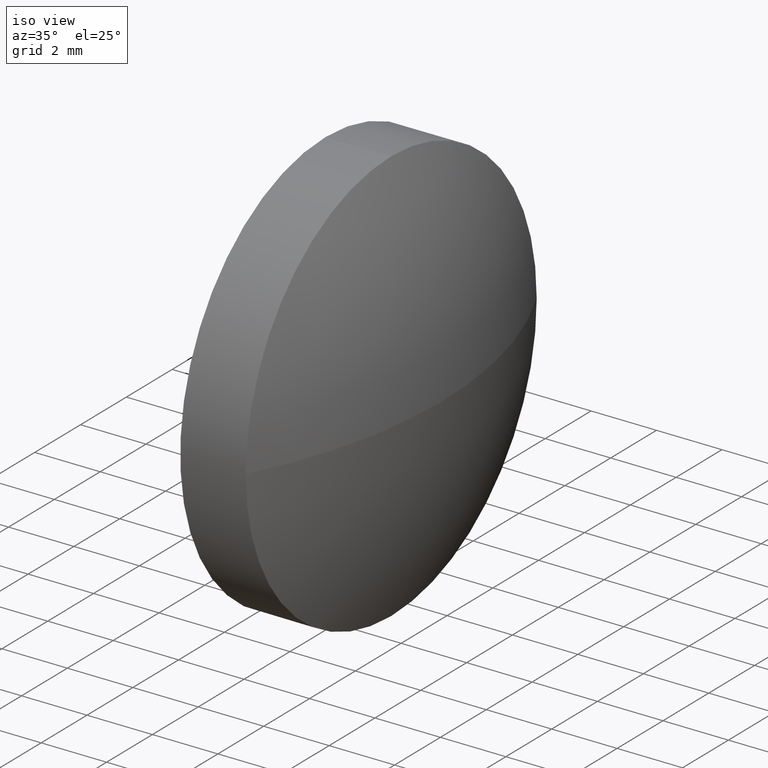
[diagram: clean part render]
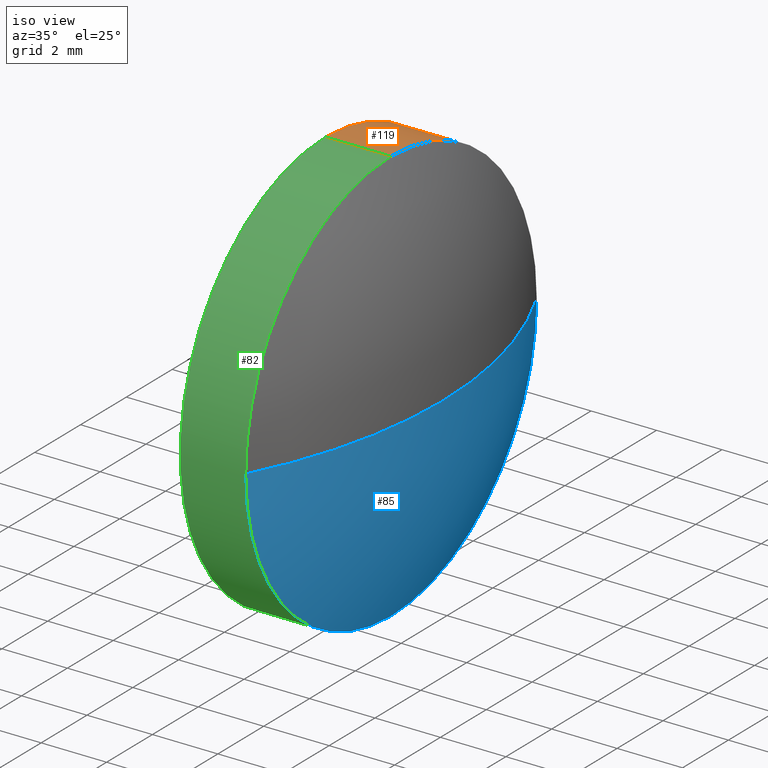
[diagram: same view with three faces highlighted in distinct colors, each labeled with its STEP entity id]
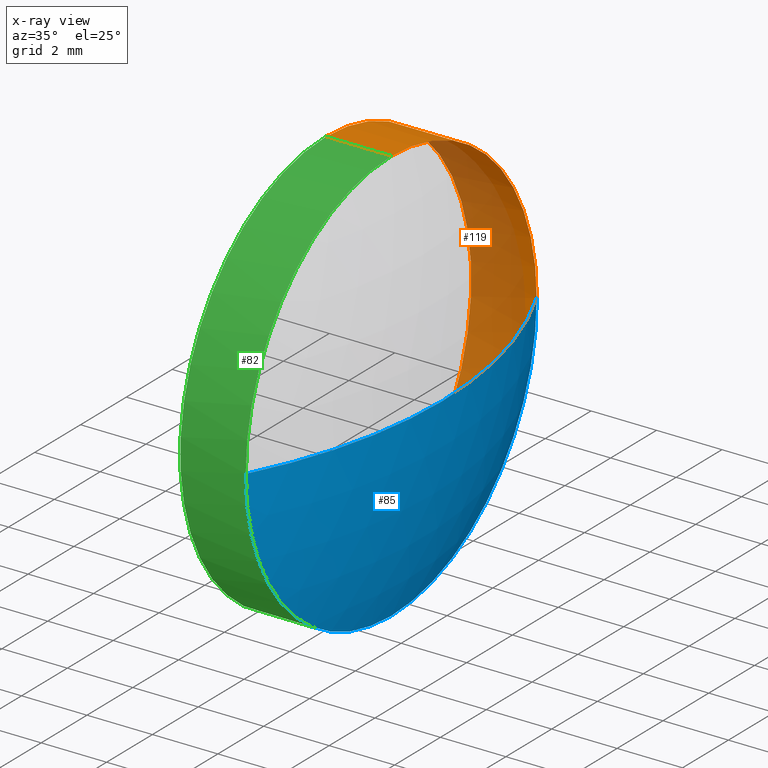
[diagram: x-ray of the same camera — body ghosted, the three highlighted faces saturated]
A machine part, iso view with three faces highlighted in distinct colors.
The next image is the same camera in x-ray (body ghosted, the three faces saturated) — at least one of them is partly hidden behind the body in this view.
Their STEP definitions:

[orange] entity #119 — the highlighted cylindrical surface (partial cylindrical patch) has radius 6.35 mm, axis along (-1, -0, -0).
#4 = EDGE_CURVE ( 'NONE', #27, #70, #67, .T. ) ;
#11 = CARTESIAN_POINT ( 'NONE',  ( 364.8812651092808300, 34.69530442998001300, 6.350000000000001400 ) ) ;
#12 = AXIS2_PLACEMENT_3D ( 'NONE', #111, #75, #60 ) ;
#18 = CARTESIAN_POINT ( 'NONE',  ( 369.2092935992750400, 41.04530442998002100, 0.0000000000000000000 ) ) ;
#19 = VECTOR ( 'NONE', #102, 1000.000000000000000 ) ;
#22 = VERTEX_POINT ( 'NONE', #153 ) ;
#23 = DIRECTION ( 'NONE',  ( -1.000000000000000000, -0.0000000000000000000, -0.0000000000000000000 ) ) ;
#25 = EDGE_LOOP ( 'NONE', ( #132, #128, #140, #115, #186 ) ) ;
#27 = VERTEX_POINT ( 'NONE', #149 ) ;
#31 = CARTESIAN_POINT ( 'NONE',  ( 369.2092935992750400, 34.69530442998001300, 0.0000000000000000000 ) ) ;
#36 = VERTEX_POINT ( 'NONE', #18 ) ;
#41 = VERTEX_POINT ( 'NONE', #73 ) ;
#47 = DIRECTION ( 'NONE',  ( -1.000000000000000000, -0.0000000000000000000, -0.0000000000000000000 ) ) ;
#53 = FACE_OUTER_BOUND ( 'NONE', #25, .T. ) ;
#55 = LINE ( 'NONE', #11, #19 ) ;
#60 = DIRECTION ( 'NONE',  ( 0.0000000000000000000, 0.0000000000000000000, 1.000000000000000000 ) ) ;
#62 = DIRECTION ( 'NONE',  ( -1.000000000000000000, -0.0000000000000000000, -0.0000000000000000000 ) ) ;
#65 = CARTESIAN_POINT ( 'NONE',  ( 369.2092935992750400, 34.69530442998001300, 0.0000000000000000000 ) ) ;
#67 = CIRCLE ( 'NONE', #12, 6.350000000000001400 ) ;
#70 = VERTEX_POINT ( 'NONE', #138 ) ;
#73 = CARTESIAN_POINT ( 'NONE',  ( 369.2092935992750400, 34.69530442998001300, 6.350000000000001400 ) ) ;
#75 = DIRECTION ( 'NONE',  ( -1.000000000000000000, -0.0000000000000000000, -0.0000000000000000000 ) ) ;
#83 = DIRECTION ( 'NONE',  ( 0.0000000000000000000, 0.0000000000000000000, 1.000000000000000000 ) ) ;
#93 = VECTOR ( 'NONE', #47, 1000.000000000000000 ) ;
#96 = DIRECTION ( 'NONE',  ( -1.000000000000000000, -0.0000000000000000000, -0.0000000000000000000 ) ) ;
#98 = CIRCLE ( 'NONE', #110, 6.350000000000001400 ) ;
#100 = EDGE_CURVE ( 'NONE', #36, #22, #104, .T. ) ;
#102 = DIRECTION ( 'NONE',  ( -1.000000000000000000, -0.0000000000000000000, -0.0000000000000000000 ) ) ;
#103 = AXIS2_PLACEMENT_3D ( 'NONE', #65, #23, #127 ) ;
#104 = CIRCLE ( 'NONE', #103, 6.350000000000001400 ) ;
#110 = AXIS2_PLACEMENT_3D ( 'NONE', #31, #62, #83 ) ;
#111 = CARTESIAN_POINT ( 'NONE',  ( 367.2092935992750400, 34.69530442998001300, 0.0000000000000000000 ) ) ;
#115 = ORIENTED_EDGE ( 'NONE', *, *, #130, .F. ) ;
#118 = AXIS2_PLACEMENT_3D ( 'NONE', #120, #96, #155 ) ;
#119 = ADVANCED_FACE ( 'NONE', ( #53 ), #133, .T. ) ;
#120 = CARTESIAN_POINT ( 'NONE',  ( 364.8812651092808300, 34.69530442998001300, 0.0000000000000000000 ) ) ;
#127 = DIRECTION ( 'NONE',  ( 0.0000000000000000000, 0.0000000000000000000, 1.000000000000000000 ) ) ;
#128 = ORIENTED_EDGE ( 'NONE', *, *, #161, .T. ) ;
#130 = EDGE_CURVE ( 'NONE', #41, #27, #55, .T. ) ;
#131 = LINE ( 'NONE', #158, #93 ) ;
#132 = ORIENTED_EDGE ( 'NONE', *, *, #100, .T. ) ;
#133 = CYLINDRICAL_SURFACE ( 'NONE', #118, 6.350000000000001400 ) ;
#134 = EDGE_CURVE ( 'NONE', #41, #36, #98, .T. ) ;
#138 = CARTESIAN_POINT ( 'NONE',  ( 367.2092935992750400, 34.69530442998001300, -6.350000000000001400 ) ) ;
#140 = ORIENTED_EDGE ( 'NONE', *, *, #4, .F. ) ;
#149 = CARTESIAN_POINT ( 'NONE',  ( 367.2092935992750400, 34.69530442998001300, 6.350000000000001400 ) ) ;
#153 = CARTESIAN_POINT ( 'NONE',  ( 369.2092935992750400, 34.69530442998001300, -6.350000000000001400 ) ) ;
#155 = DIRECTION ( 'NONE',  ( 0.0000000000000000000, 0.0000000000000000000, 1.000000000000000000 ) ) ;
#158 = CARTESIAN_POINT ( 'NONE',  ( 364.8812651092808300, 34.69530442998001300, -6.350000000000001400 ) ) ;
#161 = EDGE_CURVE ( 'NONE', #22, #70, #131, .T. ) ;
#186 = ORIENTED_EDGE ( 'NONE', *, *, #134, .T. ) ;

[blue] entity #85 — the highlighted spherical surface has radius 13.7039 mm.
#3 = ORIENTED_EDGE ( 'NONE', *, *, #28, .F. ) ;
#7 = DIRECTION ( 'NONE',  ( -0.0000000000000000000, 0.0000000000000000000, 1.000000000000000000 ) ) ;
#13 = VERTEX_POINT ( 'NONE', #164 ) ;
#14 = CIRCLE ( 'NONE', #159, 6.350000000000001400 ) ;
#17 = CARTESIAN_POINT ( 'NONE',  ( 357.0654153941467800, 34.69530442998000600, 0.0000000000000000000 ) ) ;
#18 = CARTESIAN_POINT ( 'NONE',  ( 369.2092935992750400, 41.04530442998002100, 0.0000000000000000000 ) ) ;
#22 = VERTEX_POINT ( 'NONE', #153 ) ;
#23 = DIRECTION ( 'NONE',  ( -1.000000000000000000, -0.0000000000000000000, -0.0000000000000000000 ) ) ;
#28 = EDGE_CURVE ( 'NONE', #13, #36, #174, .T. ) ;
#36 = VERTEX_POINT ( 'NONE', #18 ) ;
#37 = AXIS2_PLACEMENT_3D ( 'NONE', #97, #7, #150 ) ;
#44 = AXIS2_PLACEMENT_3D ( 'NONE', #108, #139, #129 ) ;
#57 = ORIENTED_EDGE ( 'NONE', *, *, #151, .F. ) ;
#61 = DIRECTION ( 'NONE',  ( -0.0000000000000000000, 0.0000000000000000000, -1.000000000000000000 ) ) ;
#65 = CARTESIAN_POINT ( 'NONE',  ( 369.2092935992750400, 34.69530442998001300, 0.0000000000000000000 ) ) ;
#85 = ADVANCED_FACE ( 'NONE', ( #136 ), #169, .T. ) ;
#86 = AXIS2_PLACEMENT_3D ( 'NONE', #17, #61, #123 ) ;
#87 = ORIENTED_EDGE ( 'NONE', *, *, #91, .T. ) ;
#91 = EDGE_CURVE ( 'NONE', #13, #121, #94, .T. ) ;
#94 = CIRCLE ( 'NONE', #44, 13.70387820512830000 ) ;
#97 = CARTESIAN_POINT ( 'NONE',  ( 357.0654153941467800, 34.69530442998000600, 0.0000000000000000000 ) ) ;
#100 = EDGE_CURVE ( 'NONE', #36, #22, #104, .T. ) ;
#103 = AXIS2_PLACEMENT_3D ( 'NONE', #65, #23, #127 ) ;
#104 = CIRCLE ( 'NONE', #103, 6.350000000000001400 ) ;
#105 = EDGE_LOOP ( 'NONE', ( #3, #87, #57, #172 ) ) ;
#108 = CARTESIAN_POINT ( 'NONE',  ( 357.0654153941467800, 34.69530442998000600, 0.0000000000000000000 ) ) ;
#121 = VERTEX_POINT ( 'NONE', #157 ) ;
#123 = DIRECTION ( 'NONE',  ( 0.0000000000000000000, 1.000000000000000000, 0.0000000000000000000 ) ) ;
#127 = DIRECTION ( 'NONE',  ( 0.0000000000000000000, 0.0000000000000000000, 1.000000000000000000 ) ) ;
#129 = DIRECTION ( 'NONE',  ( 0.0000000000000000000, 1.000000000000000000, 1.224646799147353200E-016 ) ) ;
#136 = FACE_OUTER_BOUND ( 'NONE', #105, .T. ) ;
#139 = DIRECTION ( 'NONE',  ( 0.0000000000000000000, 1.224646799147353200E-016, -1.000000000000000000 ) ) ;
#143 = DIRECTION ( 'NONE',  ( -1.000000000000000000, -0.0000000000000000000, -0.0000000000000000000 ) ) ;
#150 = DIRECTION ( 'NONE',  ( 1.000000000000000000, 0.0000000000000000000, 0.0000000000000000000 ) ) ;
#151 = EDGE_CURVE ( 'NONE', #22, #121, #14, .T. ) ;
#153 = CARTESIAN_POINT ( 'NONE',  ( 369.2092935992750400, 34.69530442998001300, -6.350000000000001400 ) ) ;
#156 = DIRECTION ( 'NONE',  ( 0.0000000000000000000, 0.0000000000000000000, 1.000000000000000000 ) ) ;
#157 = CARTESIAN_POINT ( 'NONE',  ( 369.2092935992750400, 28.34530442997999700, -7.776507174585700100E-016 ) ) ;
#159 = AXIS2_PLACEMENT_3D ( 'NONE', #182, #143, #156 ) ;
#164 = CARTESIAN_POINT ( 'NONE',  ( 370.7692935992751000, 34.69530442998000600, 0.0000000000000000000 ) ) ;
#169 = SPHERICAL_SURFACE ( 'NONE', #86, 13.70387820512830000 ) ;
#172 = ORIENTED_EDGE ( 'NONE', *, *, #100, .F. ) ;
#174 = CIRCLE ( 'NONE', #37, 13.70387820512830500 ) ;
#182 = CARTESIAN_POINT ( 'NONE',  ( 369.2092935992750400, 34.69530442998001300, 0.0000000000000000000 ) ) ;

[green] entity #82 — the highlighted cylindrical surface (partial cylindrical patch) has radius 6.35 mm, axis along (-1, -0, -0).
#5 = DIRECTION ( 'NONE',  ( 0.0000000000000000000, 0.0000000000000000000, 1.000000000000000000 ) ) ;
#11 = CARTESIAN_POINT ( 'NONE',  ( 364.8812651092808300, 34.69530442998001300, 6.350000000000001400 ) ) ;
#14 = CIRCLE ( 'NONE', #159, 6.350000000000001400 ) ;
#16 = CYLINDRICAL_SURFACE ( 'NONE', #68, 6.350000000000001400 ) ;
#19 = VECTOR ( 'NONE', #102, 1000.000000000000000 ) ;
#22 = VERTEX_POINT ( 'NONE', #153 ) ;
#27 = VERTEX_POINT ( 'NONE', #149 ) ;
#29 = ORIENTED_EDGE ( 'NONE', *, *, #71, .F. ) ;
#41 = VERTEX_POINT ( 'NONE', #73 ) ;
#43 = DIRECTION ( 'NONE',  ( -1.000000000000000000, -0.0000000000000000000, -0.0000000000000000000 ) ) ;
#45 = DIRECTION ( 'NONE',  ( 0.0000000000000000000, 0.0000000000000000000, 1.000000000000000000 ) ) ;
#47 = DIRECTION ( 'NONE',  ( -1.000000000000000000, -0.0000000000000000000, -0.0000000000000000000 ) ) ;
#48 = EDGE_LOOP ( 'NONE', ( #152, #160, #92, #178, #29 ) ) ;
#50 = AXIS2_PLACEMENT_3D ( 'NONE', #177, #181, #45 ) ;
#55 = LINE ( 'NONE', #11, #19 ) ;
#68 = AXIS2_PLACEMENT_3D ( 'NONE', #122, #154, #5 ) ;
#70 = VERTEX_POINT ( 'NONE', #138 ) ;
#71 = EDGE_CURVE ( 'NONE', #70, #27, #117, .T. ) ;
#73 = CARTESIAN_POINT ( 'NONE',  ( 369.2092935992750400, 34.69530442998001300, 6.350000000000001400 ) ) ;
#76 = EDGE_CURVE ( 'NONE', #121, #41, #106, .T. ) ;
#78 = DIRECTION ( 'NONE',  ( 0.0000000000000000000, 0.0000000000000000000, 1.000000000000000000 ) ) ;
#82 = ADVANCED_FACE ( 'NONE', ( #109 ), #16, .T. ) ;
#92 = ORIENTED_EDGE ( 'NONE', *, *, #76, .T. ) ;
#93 = VECTOR ( 'NONE', #47, 1000.000000000000000 ) ;
#102 = DIRECTION ( 'NONE',  ( -1.000000000000000000, -0.0000000000000000000, -0.0000000000000000000 ) ) ;
#106 = CIRCLE ( 'NONE', #50, 6.350000000000001400 ) ;
#109 = FACE_OUTER_BOUND ( 'NONE', #48, .T. ) ;
#117 = CIRCLE ( 'NONE', #137, 6.350000000000001400 ) ;
#121 = VERTEX_POINT ( 'NONE', #157 ) ;
#122 = CARTESIAN_POINT ( 'NONE',  ( 364.8812651092808300, 34.69530442998001300, 0.0000000000000000000 ) ) ;
#130 = EDGE_CURVE ( 'NONE', #41, #27, #55, .T. ) ;
#131 = LINE ( 'NONE', #158, #93 ) ;
#137 = AXIS2_PLACEMENT_3D ( 'NONE', #165, #43, #78 ) ;
#138 = CARTESIAN_POINT ( 'NONE',  ( 367.2092935992750400, 34.69530442998001300, -6.350000000000001400 ) ) ;
#143 = DIRECTION ( 'NONE',  ( -1.000000000000000000, -0.0000000000000000000, -0.0000000000000000000 ) ) ;
#149 = CARTESIAN_POINT ( 'NONE',  ( 367.2092935992750400, 34.69530442998001300, 6.350000000000001400 ) ) ;
#151 = EDGE_CURVE ( 'NONE', #22, #121, #14, .T. ) ;
#152 = ORIENTED_EDGE ( 'NONE', *, *, #161, .F. ) ;
#153 = CARTESIAN_POINT ( 'NONE',  ( 369.2092935992750400, 34.69530442998001300, -6.350000000000001400 ) ) ;
#154 = DIRECTION ( 'NONE',  ( -1.000000000000000000, -0.0000000000000000000, -0.0000000000000000000 ) ) ;
#156 = DIRECTION ( 'NONE',  ( 0.0000000000000000000, 0.0000000000000000000, 1.000000000000000000 ) ) ;
#157 = CARTESIAN_POINT ( 'NONE',  ( 369.2092935992750400, 28.34530442997999700, -7.776507174585700100E-016 ) ) ;
#158 = CARTESIAN_POINT ( 'NONE',  ( 364.8812651092808300, 34.69530442998001300, -6.350000000000001400 ) ) ;
#159 = AXIS2_PLACEMENT_3D ( 'NONE', #182, #143, #156 ) ;
#160 = ORIENTED_EDGE ( 'NONE', *, *, #151, .T. ) ;
#161 = EDGE_CURVE ( 'NONE', #22, #70, #131, .T. ) ;
#165 = CARTESIAN_POINT ( 'NONE',  ( 367.2092935992750400, 34.69530442998001300, 0.0000000000000000000 ) ) ;
#177 = CARTESIAN_POINT ( 'NONE',  ( 369.2092935992750400, 34.69530442998001300, 0.0000000000000000000 ) ) ;
#178 = ORIENTED_EDGE ( 'NONE', *, *, #130, .T. ) ;
#181 = DIRECTION ( 'NONE',  ( -1.000000000000000000, -0.0000000000000000000, -0.0000000000000000000 ) ) ;
#182 = CARTESIAN_POINT ( 'NONE',  ( 369.2092935992750400, 34.69530442998001300, 0.0000000000000000000 ) ) ;